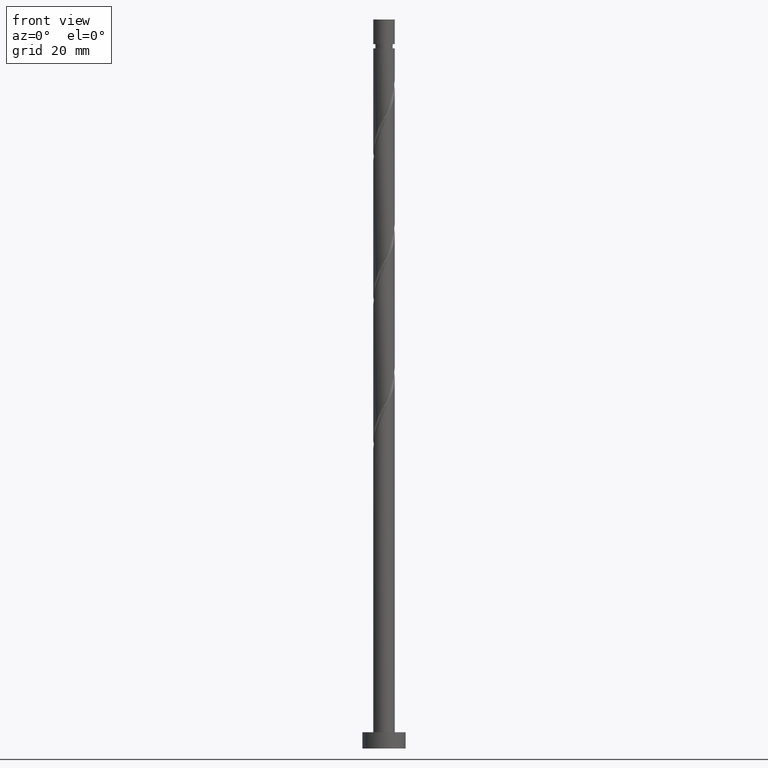
[diagram: clean part render]
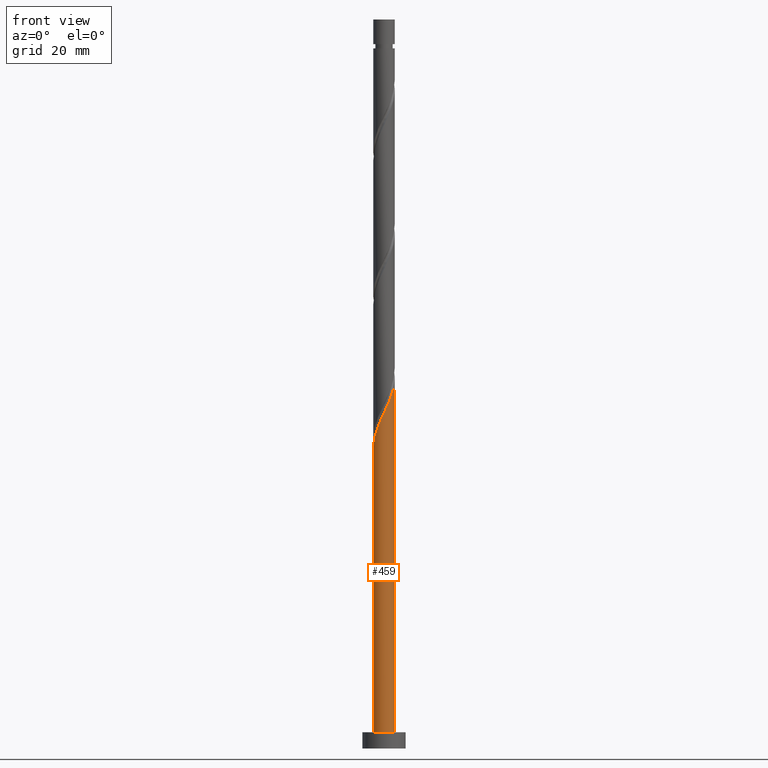
[diagram: same view with one face highlighted and labeled with its STEP entity id]
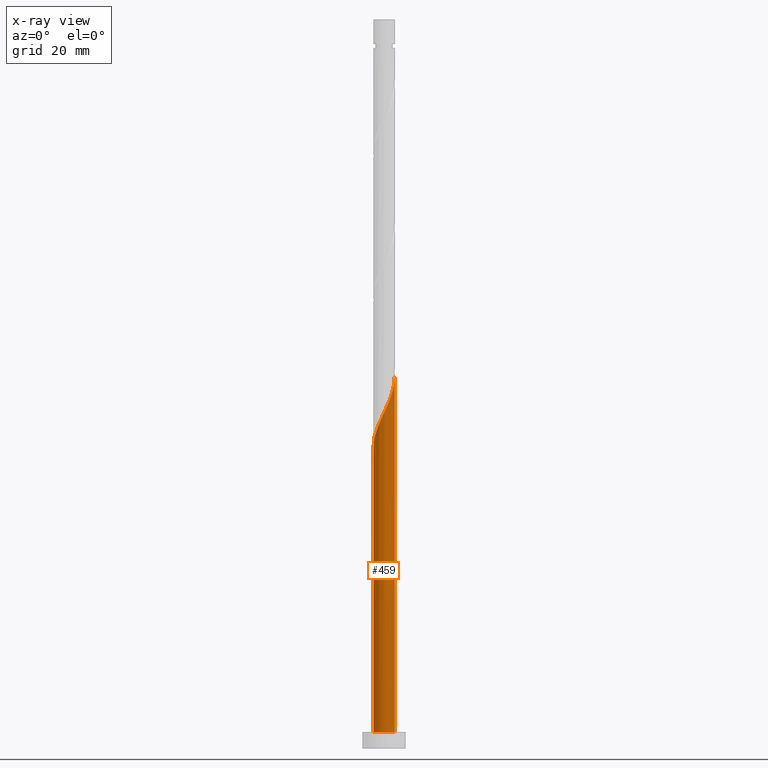
[diagram: x-ray of the same camera — body ghosted, the highlighted face saturated]
A machine part, front view. The second image highlights one B-rep face of the part: STEP entity #459.
The next image is the same camera in x-ray: the body ghosted, the highlighted face saturated — about 0% of this face is hidden behind the body in this view.
In plain terms, the highlighted cylindrical surface (edge-blend (fillet) strip) has radius 2 mm, axis along (-0, -0, -1).
Its self-contained STEP definition (entity closure, byte-faithful):
#54 = FACE_OUTER_BOUND ( 'NONE', #555, .T. ) ;
#58 = CARTESIAN_POINT ( 'NONE',  ( -0.9928482695149695170, -1.759812803970229433, 59.96173113024080692 ) ) ;
#67 = CARTESIAN_POINT ( 'NONE',  ( 2.000000000000003109, -0.2290578547702472045, 68.32328639493833577 ) ) ;
#74 = CARTESIAN_POINT ( 'NONE',  ( -1.883409435608319304, -0.6728810428757545647, 56.93142809993778997 ) ) ;
#141 = VECTOR ( 'NONE', #1168, 1000.000000000000000 ) ;
#191 = CARTESIAN_POINT ( 'NONE',  ( -0.4568343776401068146, -1.968245701812303627, 61.17385234236203218 ) ) ;
#289 = CARTESIAN_POINT ( 'NONE',  ( 0.000000000000000000, 0.000000000000000000, 135.0000000000000000 ) ) ;
#298 = CARTESIAN_POINT ( 'NONE',  ( 0.3979949748426478973, -1.960000000000003073, 62.99203416054383808 ) ) ;
#304 = CARTESIAN_POINT ( 'NONE',  ( -1.448427499289744347, -1.408810338760221770, 58.74960991811961009 ) ) ;
#307 = DIRECTION ( 'NONE',  ( -1.000000000000000000, 0.000000000000000000, 0.000000000000000000 ) ) ;
#308 = ORIENTED_EDGE ( 'NONE', *, *, #1140, .F. ) ;
#309 = CARTESIAN_POINT ( 'NONE',  ( -2.000000000000003109, -0.05755105304764548263, 55.59801101929449629 ) ) ;
#318 = DIRECTION ( 'NONE',  ( -0.000000000000000000, -0.000000000000000000, -1.000000000000000000 ) ) ;
#322 = CARTESIAN_POINT ( 'NONE',  ( -1.220637884402356432, -1.584311571365225157, 59.35567052418021916 ) ) ;
#333 = CARTESIAN_POINT ( 'NONE',  ( 0.1161895186124999452, -2.017223038501450905, 62.38597355448322901 ) ) ;
#353 = CIRCLE ( 'NONE', #798, 2.000000000000000000 ) ;
#398 = CARTESIAN_POINT ( 'NONE',  ( 2.000000000000003553, 8.375819593957977622E-16, 68.80924634790964944 ) ) ;
#415 = CYLINDRICAL_SURFACE ( 'NONE', #567, 2.000000000000000000 ) ;
#432 = CARTESIAN_POINT ( 'NONE',  ( -1.996690616564942733, -0.1150068768444763023, 55.71930688781655761 ) ) ;
#441 = CARTESIAN_POINT ( 'NONE',  ( 0.9340691933046018081, -1.768478086411957806, 64.20415537266505623 ) ) ;
#459 = ADVANCED_FACE ( 'NONE', ( #54 ), #415, .T. ) ;
#482 = EDGE_CURVE ( 'NONE', #641, #872, #807, .T. ) ;
#531 = LINE ( 'NONE', #663, #141 ) ;
#555 = EDGE_LOOP ( 'NONE', ( #308, #1230, #1476, #931 ) ) ;
#567 = AXIS2_PLACEMENT_3D ( 'NONE', #289, #318, #307 ) ;
#641 = VERTEX_POINT ( 'NONE', #1410 ) ;
#663 = CARTESIAN_POINT ( 'NONE',  ( 2.000000000000000000, 2.449293598294706414E-16, 135.0000000000000000 ) ) ;
#698 = CARTESIAN_POINT ( 'NONE',  ( 1.948211798543802997, -0.4521844623765091109, 67.84051900902868226 ) ) ;
#798 = AXIS2_PLACEMENT_3D ( 'NONE', #930, #901, #1416 ) ;
#803 = CARTESIAN_POINT ( 'NONE',  ( 1.741900447066339730, -0.9827425057002956432, 66.62839779690747832 ) ) ;
#807 = LINE ( 'NONE', #1474, #1663 ) ;
#819 = CARTESIAN_POINT ( 'NONE',  ( -0.1703224295138033306, -1.992734370156876933, 61.77991294842264836 ) ) ;
#841 = CARTESIAN_POINT ( 'NONE',  ( 1.600603406160406417, -1.233189980288575516, 66.02233719084688346 ) ) ;
#872 = VERTEX_POINT ( 'NONE', #907 ) ;
#901 = DIRECTION ( 'NONE',  ( 0.000000000000000000, 0.000000000000000000, 1.000000000000000000 ) ) ;
#907 = CARTESIAN_POINT ( 'NONE',  ( -2.000000000000000000, 0.000000000000000000, 3.000000000000000000 ) ) ;
#930 = CARTESIAN_POINT ( 'NONE',  ( 0.000000000000000000, 0.000000000000000000, 3.000000000000000000 ) ) ;
#931 = ORIENTED_EDGE ( 'NONE', *, *, #1128, .T. ) ;
#964 = CARTESIAN_POINT ( 'NONE',  ( 1.883197487972273931, -0.7322950311120155487, 67.23445840296808740 ) ) ;
#986 = VERTEX_POINT ( 'NONE', #1047 ) ;
#1012 = VERTEX_POINT ( 'NONE', #398 ) ;
#1047 = CARTESIAN_POINT ( 'NONE',  ( 2.000000000000000000, 2.449293598294706414E-16, 3.000000000000000000 ) ) ;
#1089 = CARTESIAN_POINT ( 'NONE',  ( -1.980155124014554291, -0.4020876473299550002, 56.32536749387718800 ) ) ;
#1128 = EDGE_CURVE ( 'NONE', #872, #986, #353, .T. ) ;
#1140 = EDGE_CURVE ( 'NONE', #1012, #986, #531, .T. ) ;
#1168 = DIRECTION ( 'NONE',  ( -0.000000000000000000, -0.000000000000000000, -1.000000000000000000 ) ) ;
#1205 = CARTESIAN_POINT ( 'NONE',  ( -1.786663747202084984, -0.9436744384215546289, 57.53748870599839194 ) ) ;
#1211 = DIRECTION ( 'NONE',  ( -0.000000000000000000, -0.000000000000000000, -1.000000000000000000 ) ) ;
#1230 = ORIENTED_EDGE ( 'NONE', *, *, #1394, .F. ) ;
#1303 =( BOUNDED_CURVE ( )  B_SPLINE_CURVE ( 2, ( #1461, #309, #432, #1089, #74, #1205, #1479, #304, #322, #58, #1455, #191, #819, #333, #298, #1610, #441, #1343, #1335, #841, #803, #964, #698, #67, #1350 ),
 .UNSPECIFIED., .F., .T. ) 
 B_SPLINE_CURVE_WITH_KNOTS ( ( 3, 2, 2, 2, 2, 2, 2, 2, 2, 2, 2, 2, 3 ),
 ( 0.05452521624175134252, 0.05681818181818176772, 0.06818181818181823228, 0.07954545454545458583, 0.09090909090909093937, 0.1022727272727272929, 0.1136363636363636465, 0.1250000000000000000, 0.1363636363636363535, 0.1477272727272727071, 0.1590909090909090606, 0.1704545454545454142, 0.1795252162417512731 ),
 .UNSPECIFIED. ) 
 CURVE ( )  GEOMETRIC_REPRESENTATION_ITEM ( )  RATIONAL_B_SPLINE_CURVE ( ( 0.9061101570135620120, 0.9072237824201441203, 0.9090909090909216062, 0.8998376744372238445, 0.9090909090909216062, 0.8998376744372238445, 0.9090909090909216062, 0.8998376744372238445, 0.9090909090909216062, 0.8998376744372238445, 0.9090909090909216062, 0.8998376744372238445, 0.9090909090909216062, 0.8998376744372238445, 0.9090909090909216062, 0.8998376744372238445, 0.9090909090909216062, 0.8998376744372238445, 0.9090909090909216062, 0.8998376744372238445, 0.9090909090909216062, 0.8998376744372238445, 0.9090909090909216062, 0.9017048011080013303, 0.9061101570135619010 ) ) 
 REPRESENTATION_ITEM ( '' )  );
#1335 = CARTESIAN_POINT ( 'NONE',  ( 1.394470680848407973, -1.433684595806968387, 65.41627658478627438 ) ) ;
#1343 = CARTESIAN_POINT ( 'NONE',  ( 1.188337955536409085, -1.634179211325361036, 64.81021597872567952 ) ) ;
#1350 = CARTESIAN_POINT ( 'NONE',  ( 2.000000000000003553, 8.375819593957977622E-16, 68.80924634790964944 ) ) ;
#1394 = EDGE_CURVE ( 'NONE', #641, #1012, #1303, .T. ) ;
#1410 = CARTESIAN_POINT ( 'NONE',  ( -2.000000000000003109, -9.348012939685244184E-16, 55.47591301457629953 ) ) ;
#1416 = DIRECTION ( 'NONE',  ( 1.000000000000000000, 0.000000000000000000, 0.000000000000000000 ) ) ;
#1455 = CARTESIAN_POINT ( 'NONE',  ( -0.7248413235775381658, -1.864029252891266308, 60.56779173630140889 ) ) ;
#1461 = CARTESIAN_POINT ( 'NONE',  ( -2.000000000000003109, -9.348012939685244184E-16, 55.47591301457629953 ) ) ;
#1474 = CARTESIAN_POINT ( 'NONE',  ( -2.000000000000000000, 0.000000000000000000, 135.0000000000000000 ) ) ;
#1476 = ORIENTED_EDGE ( 'NONE', *, *, #482, .T. ) ;
#1479 = CARTESIAN_POINT ( 'NONE',  ( -1.617545623245914443, -1.176242388590887922, 58.14354931205900101 ) ) ;
#1610 = CARTESIAN_POINT ( 'NONE',  ( 0.6798004310727959743, -1.902776961498555020, 63.59809476660447558 ) ) ;
#1663 = VECTOR ( 'NONE', #1211, 1000.000000000000000 ) ;